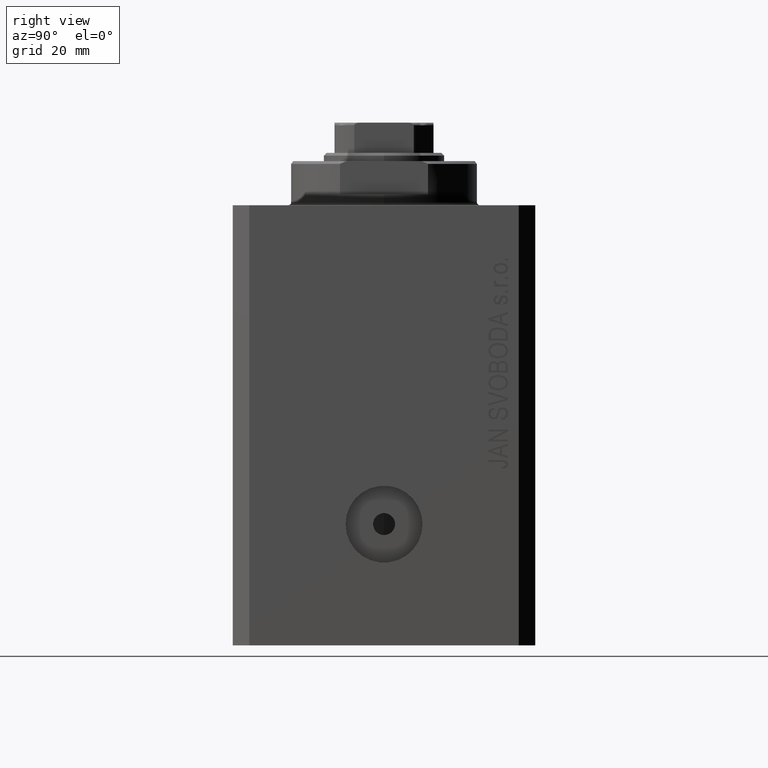
[diagram: clean part render]
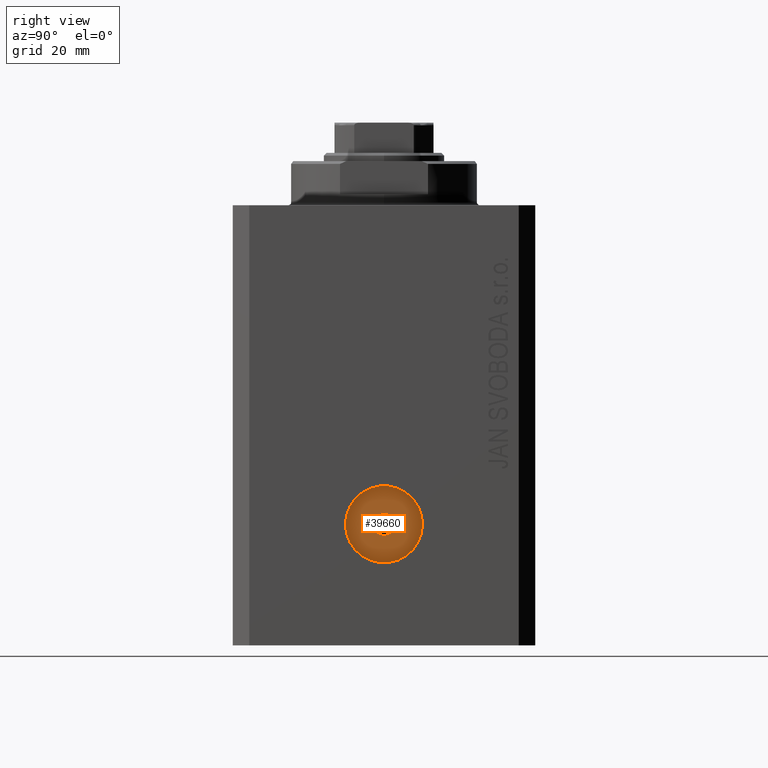
[diagram: same view with one face highlighted and labeled with its STEP entity id]
A machine part, right view. The second image highlights one B-rep face of the part: STEP entity #39660.
In plain terms, the highlighted planar face has unit normal (1, -0, 0).
Its self-contained STEP definition (entity closure, byte-faithful):
#538 = EDGE_CURVE ( 'NONE', #8411, #21866, #16591, .T. ) ;
#549 = CIRCLE ( 'NONE', #20045, 2.000000000000003109 ) ;
#562 = EDGE_LOOP ( 'NONE', ( #43743, #37628 ) ) ;
#1505 = VERTEX_POINT ( 'NONE', #12925 ) ;
#2926 = ORIENTED_EDGE ( 'NONE', *, *, #538, .T. ) ;
#4300 = CARTESIAN_POINT ( 'NONE',  ( 33.00000000000025580, 7.279302749271440798E-14, -58.00000000000000000 ) ) ;
#4602 = CARTESIAN_POINT ( 'NONE',  ( 33.00000000000017053, -6.999999999999920064, -58.00000000000000000 ) ) ;
#7868 = AXIS2_PLACEMENT_3D ( 'NONE', #16829, #10486, #17277 ) ;
#8357 = DIRECTION ( 'NONE',  ( 1.000000000000000000, -1.334402673828349134E-14, 0.000000000000000000 ) ) ;
#8411 = VERTEX_POINT ( 'NONE', #14695 ) ;
#9767 = CARTESIAN_POINT ( 'NONE',  ( 33.00000000000025580, 7.279302749271437011E-14, -58.00000000000000000 ) ) ;
#10120 = AXIS2_PLACEMENT_3D ( 'NONE', #9767, #30578, #29693 ) ;
#10486 = DIRECTION ( 'NONE',  ( 1.000000000000000000, -1.334402673828349134E-14, 0.000000000000000000 ) ) ;
#12925 = CARTESIAN_POINT ( 'NONE',  ( 33.00000000000028422, 2.000000000000075939, -58.00000000000000000 ) ) ;
#14695 = CARTESIAN_POINT ( 'NONE',  ( 33.00000000000034817, 7.000000000000065725, -58.00000000000000000 ) ) ;
#14711 = DIRECTION ( 'NONE',  ( 1.288651725011343653E-14, 1.000000000000000000, 0.000000000000000000 ) ) ;
#15272 = CARTESIAN_POINT ( 'NONE',  ( 33.00000000000025580, 7.279302749271437011E-14, -58.00000000000000000 ) ) ;
#16591 = CIRCLE ( 'NONE', #34660, 6.999999999999992895 ) ;
#16829 = CARTESIAN_POINT ( 'NONE',  ( 33.00000000000025580, 7.279302749271440798E-14, -58.00000000000000000 ) ) ;
#17277 = DIRECTION ( 'NONE',  ( 1.288651725011343653E-14, 1.000000000000000000, 0.000000000000000000 ) ) ;
#18098 = DIRECTION ( 'NONE',  ( 1.334402673828349134E-14, 1.000000000000000000, 0.000000000000000000 ) ) ;
#20045 = AXIS2_PLACEMENT_3D ( 'NONE', #15272, #29075, #36096 ) ;
#20165 = CARTESIAN_POINT ( 'NONE',  ( 33.00000000000022737, -1.999999999999930278, -58.00000000000000000 ) ) ;
#21866 = VERTEX_POINT ( 'NONE', #4602 ) ;
#24436 = CARTESIAN_POINT ( 'NONE',  ( 33.00000000000025580, 7.279302749271440798E-14, -58.00000000000000000 ) ) ;
#28508 = PLANE ( 'NONE',  #33895 ) ;
#29075 = DIRECTION ( 'NONE',  ( 1.000000000000000000, -1.334402673828349134E-14, 0.000000000000000000 ) ) ;
#29693 = DIRECTION ( 'NONE',  ( 1.387778780781443467E-14, 1.000000000000000000, 0.000000000000000000 ) ) ;
#30578 = DIRECTION ( 'NONE',  ( 1.000000000000000000, -1.334402673828349134E-14, 0.000000000000000000 ) ) ;
#31216 = FACE_OUTER_BOUND ( 'NONE', #37293, .T. ) ;
#32549 = ORIENTED_EDGE ( 'NONE', *, *, #38792, .T. ) ;
#33895 = AXIS2_PLACEMENT_3D ( 'NONE', #24436, #34610, #18098 ) ;
#34351 = EDGE_CURVE ( 'NONE', #41301, #1505, #549, .T. ) ;
#34610 = DIRECTION ( 'NONE',  ( 1.000000000000000000, -1.334402673828349134E-14, 0.000000000000000000 ) ) ;
#34660 = AXIS2_PLACEMENT_3D ( 'NONE', #4300, #8357, #14711 ) ;
#35414 = CIRCLE ( 'NONE', #10120, 2.000000000000003109 ) ;
#36096 = DIRECTION ( 'NONE',  ( 1.387778780781443467E-14, 1.000000000000000000, 0.000000000000000000 ) ) ;
#37293 = EDGE_LOOP ( 'NONE', ( #2926, #32549 ) ) ;
#37484 = CIRCLE ( 'NONE', #7868, 6.999999999999992895 ) ;
#37628 = ORIENTED_EDGE ( 'NONE', *, *, #34351, .F. ) ;
#38239 = FACE_BOUND ( 'NONE', #562, .T. ) ;
#38792 = EDGE_CURVE ( 'NONE', #21866, #8411, #37484, .T. ) ;
#39660 = ADVANCED_FACE ( 'NONE', ( #38239, #31216 ), #28508, .T. ) ;
#41301 = VERTEX_POINT ( 'NONE', #20165 ) ;
#42506 = EDGE_CURVE ( 'NONE', #1505, #41301, #35414, .T. ) ;
#43743 = ORIENTED_EDGE ( 'NONE', *, *, #42506, .F. ) ;